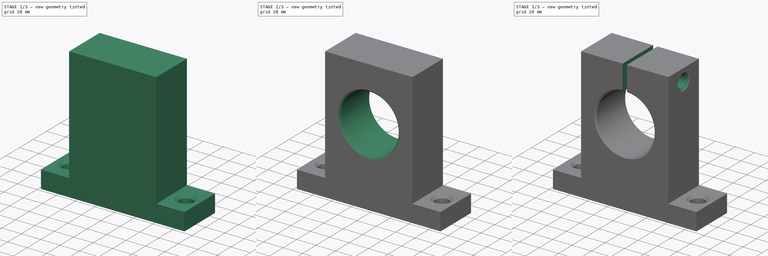
[diagram: build sequence overview — one tinted view per stage of 3, left to right]
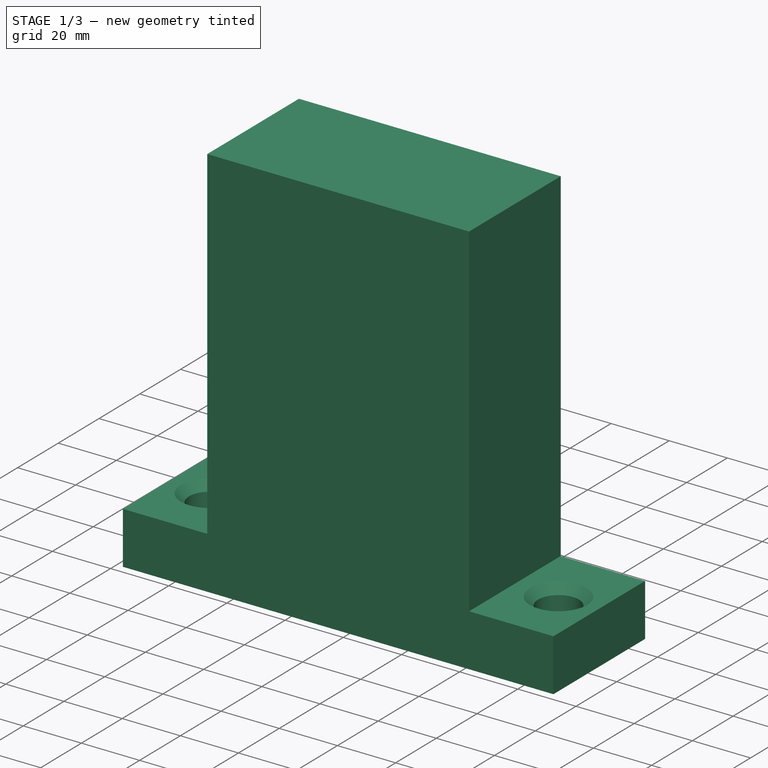
[diagram: stage 1 of 3 — iso view after this stage's code; geometry added in this stage tinted green]
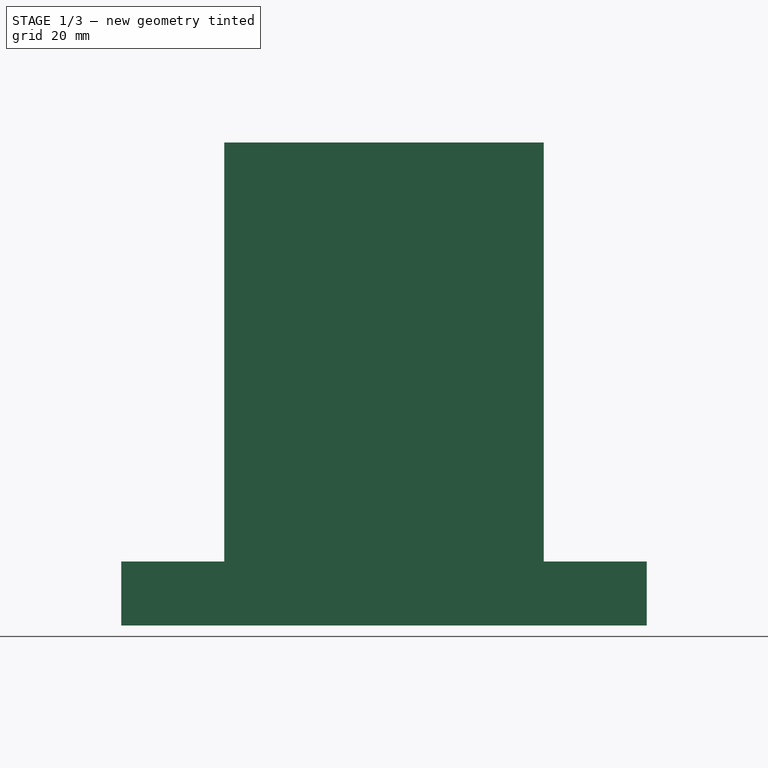
[diagram: stage 1 of 3 — front view after this stage's code; geometry added in this stage tinted green]
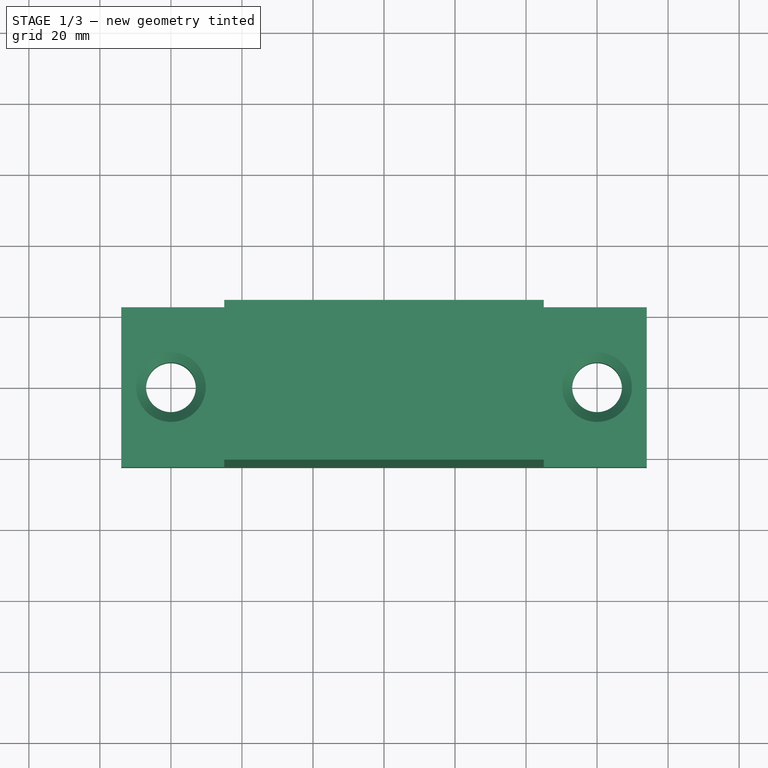
[diagram: stage 1 of 3 — top view after this stage's code; geometry added in this stage tinted green]
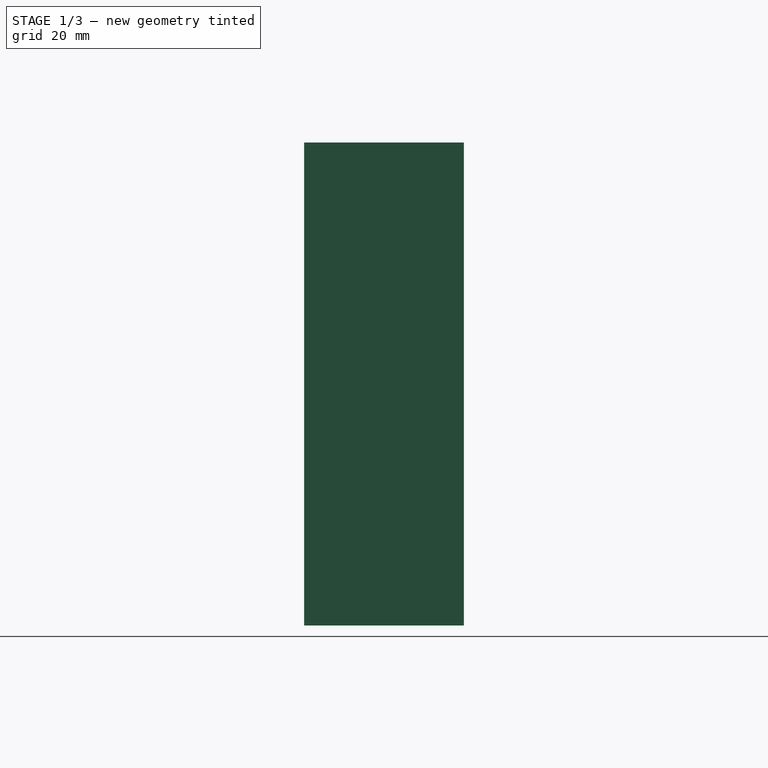
[diagram: stage 1 of 3 — right view after this stage's code; geometry added in this stage tinted green]
FCSTD DOCUMENT  (FreeCAD 0.21R30492 (Git))
Label: SKXX
License: All rights reserved
LicenseURL: http://en.wikipedia.org/wiki/All_rights_reserved
objects: Sketcher::SketchObject×5, PartDesign::Pocket×4, PartDesign::Chamfer×3, Spreadsheet::Sheet×1, PartDesign::Pad×1, PartDesign::Body×1, App::Part×1
note: 22 computed .brp shape members not serialized (recipe doc carries the construction recipe); baked Part::Feature solids carry a one-line shape summary decoded from their .brp

FEATURE [Spreadsheet::Sheet] Spreadsheet
  cells = C1=Main dimensions; A2=Model; B2=Shaft diameter; C2=h; D2=E; E2=W; F2=L; G2=F; H2=G; I2=P; J2=B; K2=S; M2=Clamping blot; O2=Mounting bolt; P2=Weight [kg]; A3==hiddenref(Part.Configuration.String); B3(D_dim)==.B15; C3(h_dim)==.C15; D3(E_dim)==.D15; E3(W_dim)==.E15; F3(L_dim)==.F15; G3(F_dim)==.G15; H3(G_dim)==.H15; I3(P_dim)==.I15; J3(B_dim)==.J15; K3(S_dim)==.K15; L3(clamp_bolt)==.L15; M3==.M15; N3==.N15; O3==.O15; P3==.P15; A4=SK08; B4=8; C4=20; D4=21; E4=42; F4=14; G4=32.8; H4=3; I4=18; J4=32; K4=5.5; L4=4; M4=M4; N4=5; O4=M5; P4=0.024; A5=SK10; B5=10; C5=20; D5=21; E5=42; F5=14; G5=32.8; H5=6; I5=18; J5=32; K5=5.5; L5=4; M5=M4; N5=5; O5=M5; P5=0.024; A6=SK12; B6=12; C6=23; D6=21; E6=42; F6=14; G6=37.5; H6=6; I6=20; J6=32; K6=5.5; L6=4; M6=M4; N6=5; O6=M5; P6=0.03; A7=SK13; B7=13; C7=23; D7=21; E7=42; F7=14; G7=37.5; H7=6; I7=20; J7=32; K7=5.5; L7=4; M7=M4; N7=5; O7=M5; P7=0.03; A8=SK16; B8=16; C8=27; D8=24; E8=48; F8=16; G8=44; H8=8; I8=25; J8=38; K8=5.5; L8=5; M8=M5; N8=6; O8=M6; P8=0.04; A9=SK20; B9=20; C9=31; D9=30; E9=60; F9=20; G9=51; H9=10; I9=30; J9=45; K9=6.6; L9=6; M9=M6; N9=6; O9=M6; P9=0.07000000000000001; A10=SK25; B10=25; C10=35; D10=35; E10=70; F10=24; G10=60; H10=12; I10=38; J10=56; K10=6.6; L10=6; M10=M6; N10=8; O10=M8; P10=0.13; A11=SK30; B11=30; C11=42; D11=42; E11=84; F11=28; G11=70; H11=12; I11=44; J11=64; K11=9; L11=8; M11=M8; N11=10; O11=M10; P11=0.18; A12=SK35; B12=35; C12=50; D12=49; E12=98; F12=32; G12=82; H12=15; I12=50; J12=74; K12=11; L12=8; M12=M8; N12=10; O12=M10; P12=0.27; A13=SK40; B13=40; C13=60; D13=57; E13=114; F13=36; G13=96; H13=15; I13=60; J13=90; K13=11; L13=10; M13=M10; N13=10; O13=M10; P13=0.42; A14=SK50; B14=50; C14=70; D14=63; E14=126; F14=40; G14=120; H14=18; I14=74; +23 more cells
  expr: .cells.Bind.B3.P3 = tuple(.cells; <<B>> + str(hiddenref(Part.Configuration) + 4); <<P>> + str(hiddenref(Part.Configuration) + 4))
FEATURE [Sketcher::SketchObject] Sketch
  FullyConstrained = true
  MapMode = 5
  Placement = pos=(0,0,0) rot=(1,0,0;1.5708rad)
  Support = -> [XZ_Plane001]
  expr: Constraints[20] = <<Spreadsheet>>.W_dim
  expr: Constraints[21] = <<Spreadsheet>>.G_dim
  expr: Constraints[22] = <<Spreadsheet>>.F_dim
  expr: Constraints[23] = <<Spreadsheet>>.P_dim
  sketch-geometry (9):
    g0: LineSegment StartX=-74 StartY=0 StartZ=0 EndX=74 EndY=0 EndZ=0
    g1: LineSegment StartX=74 StartY=0 StartZ=0 EndX=74 EndY=18 EndZ=0
    g2: LineSegment StartX=74 StartY=18 StartZ=0 EndX=45 EndY=18 EndZ=0
    g3: LineSegment StartX=45 StartY=18 StartZ=0 EndX=45 EndY=136 EndZ=0
    g4: LineSegment StartX=45 StartY=136 StartZ=0 EndX=-45 EndY=136 EndZ=0
    g5: LineSegment StartX=-45 StartY=136 StartZ=0 EndX=-45 EndY=18 EndZ=0
    g6: LineSegment StartX=-45 StartY=18 StartZ=0 EndX=-74 EndY=18 EndZ=0
    g7: LineSegment StartX=-74 StartY=18 StartZ=0 EndX=-74 EndY=0 EndZ=0
    g8: GeomPoint X=0 Y=136 Z=0
  constraints (24):
    c: PointOnObject(g0,g-1)
    c: Coincident(g0,g1)
    c: Vertical(g1)
    c: Coincident(g1,g2)
    c: Horizontal(g2)
    c: Coincident(g2,g3)
    c: Vertical(g3)
    c: Coincident(g3,g4)
    c: Horizontal(g4)
    c: Coincident(g4,g5)
    c: Vertical(g5)
    c: Coincident(g5,g6)
    c: Horizontal(g6)
    c: Coincident(g6,g7)
    c: Coincident(g7,g0)
    c: Vertical(g7)
    c: Equal(g1,g7)
    c: PointOnObject(g8,g-2)
    c: Symmetric(g3,g4,g8)
    c: Symmetric(g0,g0,g-1)
    c: DistanceX(g0,g0) = 148
    c: DistanceY(g1,g1) = 18
    c: DistanceY(g3) = 136
    c: DistanceX(g4,g4) = 90
FEATURE [PartDesign::Pad] Pad
  Direction = (0,-1,-2e-16)
  Length = 45
  Length2 = 10
  Midplane = true
  Placement = pos=(0,0,0) rot=(1,0,0;1.5708rad)
  Profile = -> Sketch
  ReferenceAxis = -> Sketch [N_Axis]
  Type = 0
  expr: Length = <<Spreadsheet>>.L_dim
FEATURE [Sketcher::SketchObject] Sketch001
  FullyConstrained = true
  MapMode = 5
  Placement = pos=(0,-4e-15,18) rot=(0,0,1;3.14159rad)
  Support = -> [Pad]
  expr: Constraints[2] = <<Spreadsheet>>.S_dim
  expr: Constraints[4] = <<Spreadsheet>>.B_dim
  sketch-geometry (2):
    g0: Circle CenterX=-60 CenterY=0 CenterZ=0 NormalX=0 NormalY=0 NormalZ=1 AngleXU=0 Radius=7
    g1: Circle CenterX=60 CenterY=0 CenterZ=0 NormalX=0 NormalY=0 NormalZ=1 AngleXU=0 Radius=7
  constraints (5):
    c: PointOnObject(g0,g-1)
    c: Equal(g0,g1)
    c: Diameter(g0) = 14
    c: Symmetric(g0,g1,g-1)
    c: DistanceX(g0,g1) = 120
FEATURE [PartDesign::Pocket] Pocket
  BaseFeature = -> Pad
  Direction = (0,2e-16,-1)
  Length = 5
  Length2 = 5
  Placement = pos=(0,0,0) rot=(1,0,0;1.5708rad)
  Profile = -> Sketch001
  ReferenceAxis = -> Sketch001 [N_Axis]
  Type = 2
FEATURE [PartDesign::Chamfer] Chamfer
  Angle = 45
  Base = -> Pocket [Edge23,Edge25]
  BaseFeature = -> Pocket
  ChamferType = 0
  FlipDirection = false
  Placement = pos=(0,0,0) rot=(1,0,0;1.5708rad)
  Size = 2.8
  Size2 = 1
  SupportTransform = false
  UseAllEdges = false
  expr: Size = 0.2 * <<Spreadsheet>>.S_dim
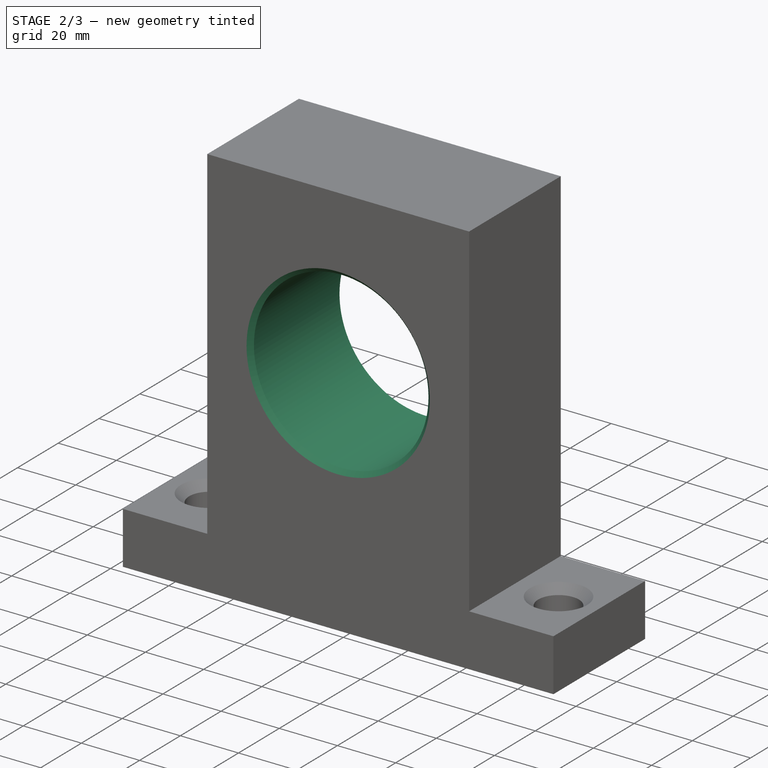
[diagram: stage 2 of 3 — iso view after this stage's code; geometry added in this stage tinted green]
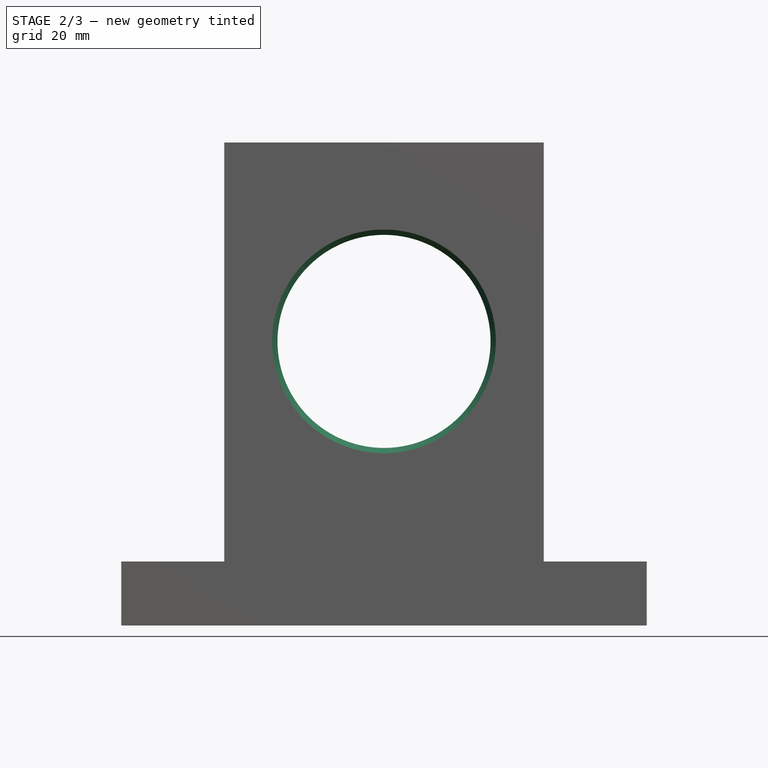
[diagram: stage 2 of 3 — front view after this stage's code; geometry added in this stage tinted green]
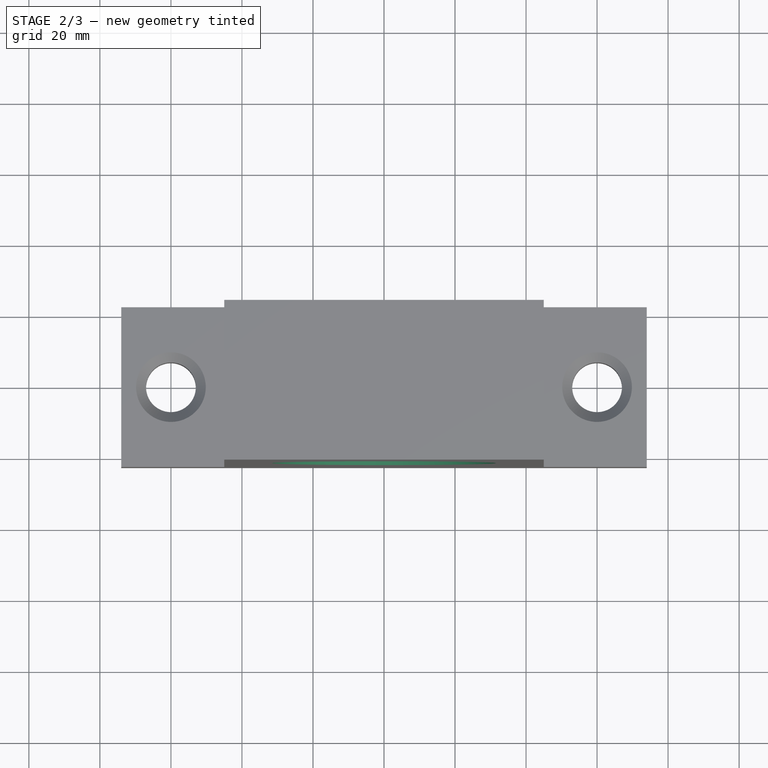
[diagram: stage 2 of 3 — top view after this stage's code; geometry added in this stage tinted green]
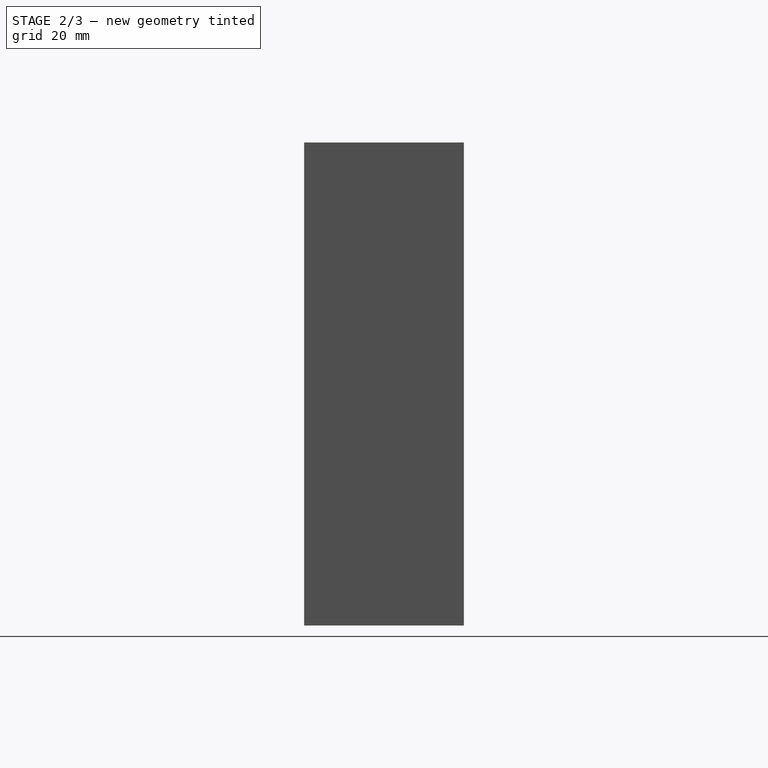
[diagram: stage 2 of 3 — right view after this stage's code; geometry added in this stage tinted green]
FEATURE [Sketcher::SketchObject] Sketch002
  FullyConstrained = true
  MapMode = 5
  Placement = pos=(0,-22.5,-5e-15) rot=(1,0,0;1.5708rad)
  Support = -> [Chamfer]
  expr: Constraints[1] = <<Spreadsheet>>.D_dim
  expr: Constraints[2] = <<Spreadsheet>>.h_dim
  sketch-geometry (1):
    g0: Circle CenterX=0 CenterY=80 CenterZ=0 NormalX=0 NormalY=0 NormalZ=1 AngleXU=0 Radius=30
  constraints (3):
    c: PointOnObject(g0,g-2)
    c: Diameter(g0) = 60
    c: DistanceY(g0) = 80
FEATURE [PartDesign::Pocket] Pocket001
  BaseFeature = -> Chamfer
  Direction = (0,1,2e-16)
  Length = 5
  Length2 = 5
  Placement = pos=(0,0,0) rot=(1,0,0;1.5708rad)
  Profile = -> Sketch002
  ReferenceAxis = -> Sketch002 [N_Axis]
  Type = 2
FEATURE [PartDesign::Chamfer] Chamfer001
  Angle = 45
  Base = -> Pocket001 [Edge22,Edge28]
  BaseFeature = -> Pocket001
  ChamferType = 0
  FlipDirection = false
  Placement = pos=(0,0,0) rot=(1,0,0;1.5708rad)
  Size = 1.5
  Size2 = 1
  SupportTransform = false
  UseAllEdges = false
  expr: Size = 0.025 * <<Spreadsheet>>.D_dim
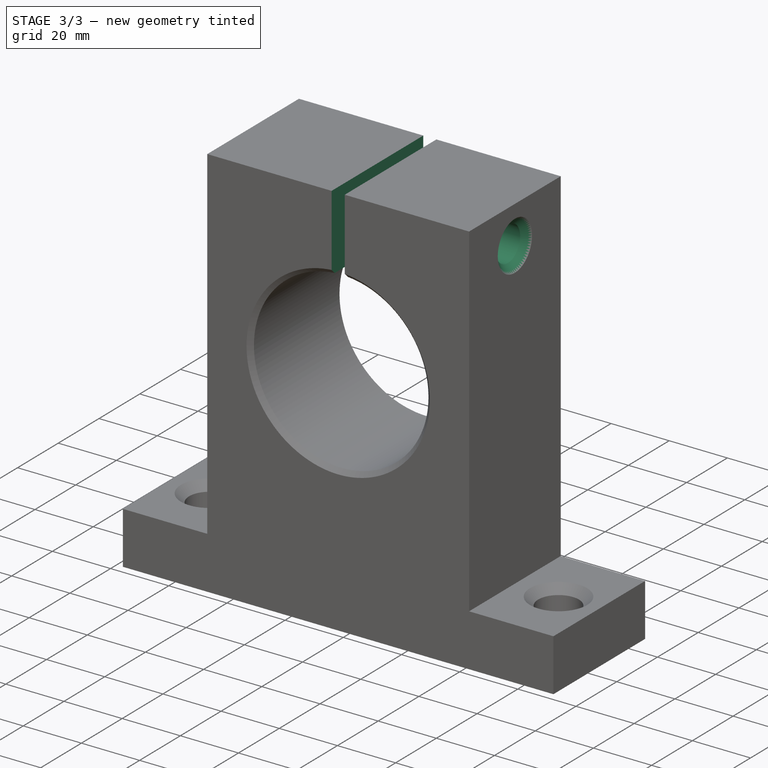
[diagram: stage 3 of 3 — iso view after this stage's code; geometry added in this stage tinted green]
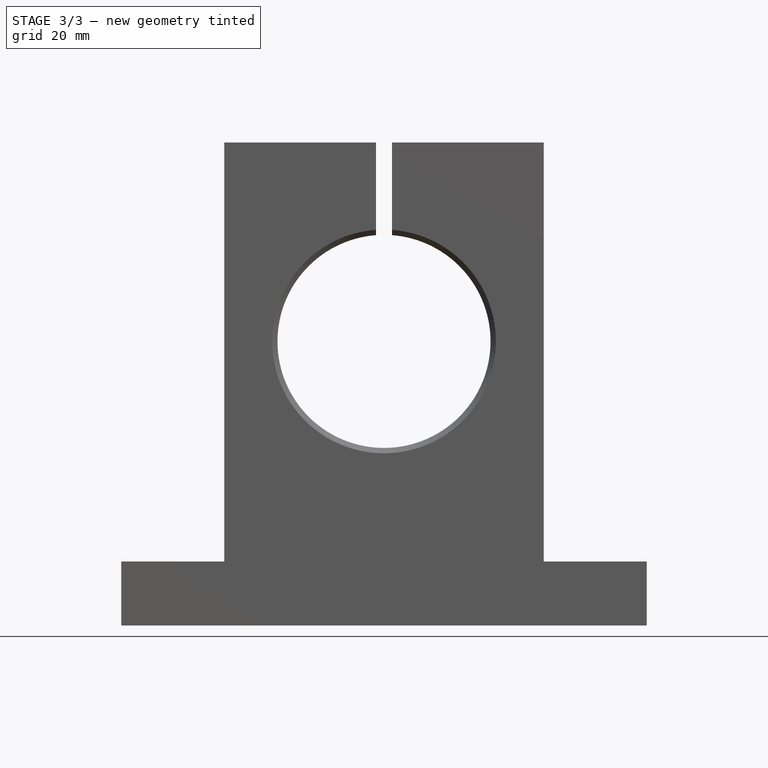
[diagram: stage 3 of 3 — front view after this stage's code; geometry added in this stage tinted green]
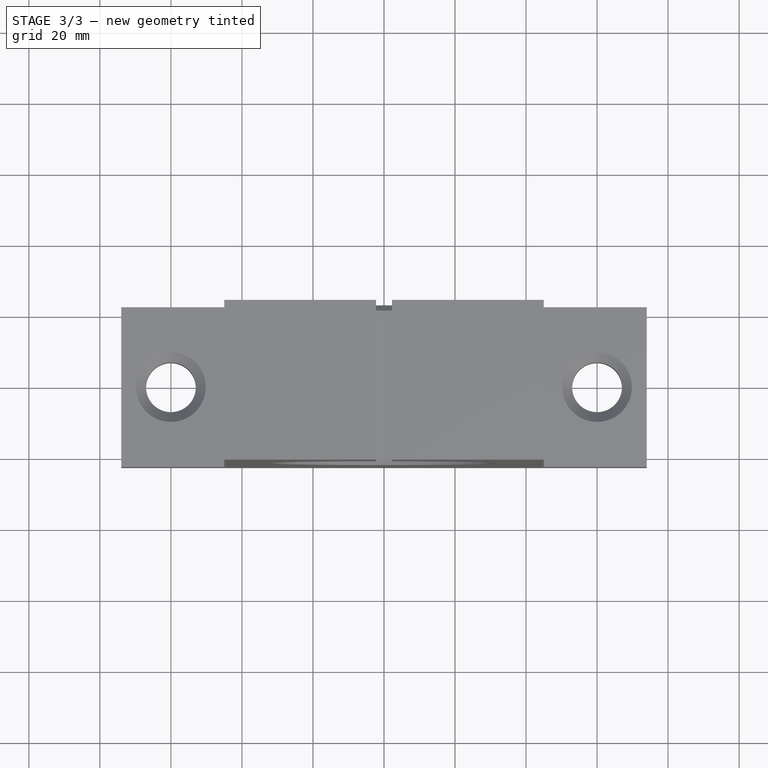
[diagram: stage 3 of 3 — top view after this stage's code; geometry added in this stage tinted green]
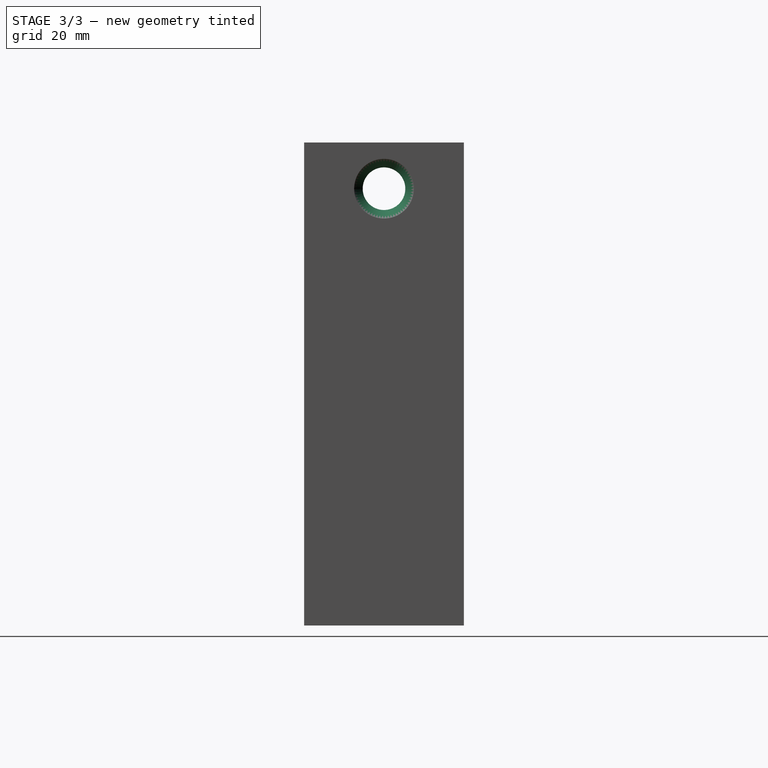
[diagram: stage 3 of 3 — right view after this stage's code; geometry added in this stage tinted green]
FEATURE [Sketcher::SketchObject] Sketch003
  FullyConstrained = true
  MapMode = 5
  Placement = pos=(45,0,0) rot=(0.707107,0,0.707107;3.14159rad)
  Support = -> [Chamfer001]
  expr: Constraints[1] = <<Spreadsheet>>.F_dim - (<<Spreadsheet>>.F_dim - <<Spreadsheet>>.h_dim - <<Spreadsheet>>.D_dim / 2) / 2
  expr: Constraints[2] = <<Spreadsheet>>.clamp_bolt
  sketch-geometry (1):
    g0: Circle CenterX=123 CenterY=0 CenterZ=0 NormalX=0 NormalY=0 NormalZ=1 AngleXU=0 Radius=6
  constraints (3):
    c: PointOnObject(g0,g-1)
    c: DistanceX(g0) = 123
    c: Diameter(g0) = 12
FEATURE [PartDesign::Pocket] Pocket002
  BaseFeature = -> Chamfer001
  Direction = (-1,0,2e-16)
  Length = 5
  Length2 = 5
  Placement = pos=(0,0,0) rot=(1,0,0;1.5708rad)
  Profile = -> Sketch003
  ReferenceAxis = -> Sketch003 [N_Axis]
  Type = 2
FEATURE [PartDesign::Chamfer] Chamfer002
  Angle = 45
  Base = -> Pocket002 [Edge29,Edge32]
  BaseFeature = -> Pocket002
  ChamferType = 0
  FlipDirection = false
  Placement = pos=(0,0,0) rot=(1,0,0;1.5708rad)
  Size = 2.4
  Size2 = 1
  SupportTransform = false
  UseAllEdges = false
  expr: Size = 0.2 * <<Spreadsheet>>.clamp_bolt
FEATURE [Sketcher::SketchObject] Sketch004
  ExternalGeometry = -> [Chamfer002]
  FullyConstrained = true
  MapMode = 5
  Placement = pos=(0,-3.02e-14,136) rot=(0,0,1;3.14159rad)
  Support = -> [Chamfer002]
  expr: Constraints[11] = 0.05 * <<Spreadsheet>>.P_dim
  sketch-geometry (5):
    g0: LineSegment StartX=-2.25 StartY=22.5 StartZ=0 EndX=-2.25 EndY=-22.5 EndZ=0
    g1: LineSegment StartX=-2.25 StartY=-22.5 StartZ=0 EndX=2.25 EndY=-22.5 EndZ=0
    g2: LineSegment StartX=2.25 StartY=-22.5 StartZ=0 EndX=2.25 EndY=22.5 EndZ=0
    g3: LineSegment StartX=2.25 StartY=22.5 StartZ=0 EndX=-2.25 EndY=22.5 EndZ=0
    g4: GeomPoint X=0 Y=0 Z=0
  constraints (12):
    c: Coincident(g0,g1)
    c: Coincident(g1,g2)
    c: Coincident(g2,g3)
    c: Coincident(g3,g0)
    c: Horizontal(g1)
    c: Horizontal(g3)
    c: Vertical(g0)
    c: Vertical(g2)
    c: Symmetric(g1,g0,g4)
    c: Coincident(g4,g-1)
    c: PointOnObject(g1,g-4)
    c: DistanceX(g3,g3) = 4.5
FEATURE [PartDesign::Pocket] Pocket003
  BaseFeature = -> Chamfer002
  Direction = (0,2e-16,-1)
  Length = 56
  Length2 = 5
  Placement = pos=(0,0,0) rot=(1,0,0;1.5708rad)
  Profile = -> Sketch004
  ReferenceAxis = -> Sketch004 [N_Axis]
  Type = 0
  expr: Length = <<Spreadsheet>>.F_dim - <<Spreadsheet>>.h_dim
FEATURE [PartDesign::Body] Body
  Group = -> [Sketch,Pad,Sketch001,Pocket,Chamfer,Sketch002,Pocket001,Chamfer001,Sketch003,Pocket002,Chamfer002,Sketch004,Pocket003]
  Origin = -> Origin001
  Tip = -> Pocket003
FEATURE [App::Part] Part  label="SKXX"
  Configuration = 11
  Group = -> [Spreadsheet,Body]
  Origin = -> Origin
  expr: .Configuration.Enum = Spreadsheet.cells[<<A4:|>>]
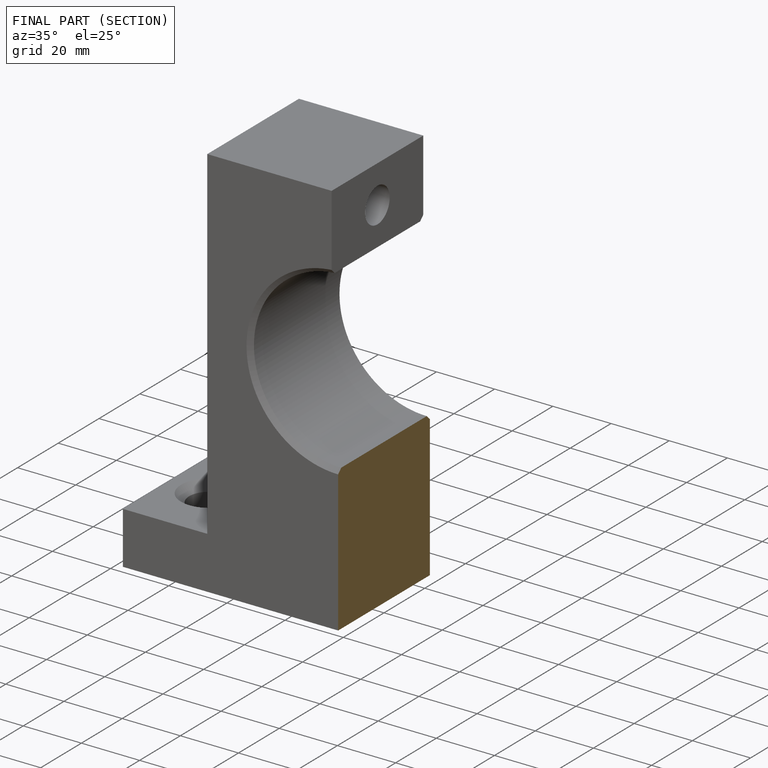
[diagram: finished part — half-section view (interior)]
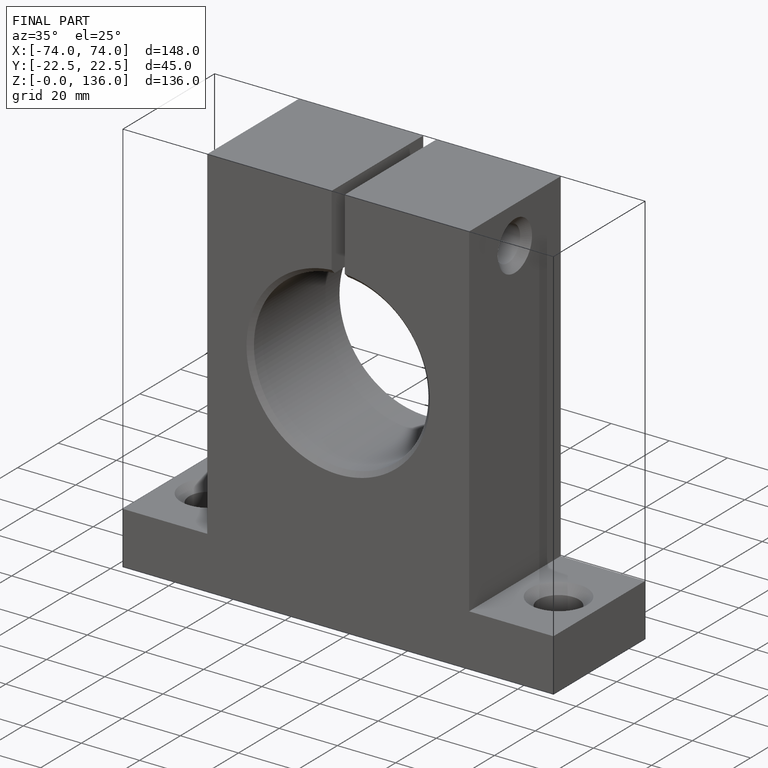
[diagram: finished part — iso view with bounding-box wireframe]
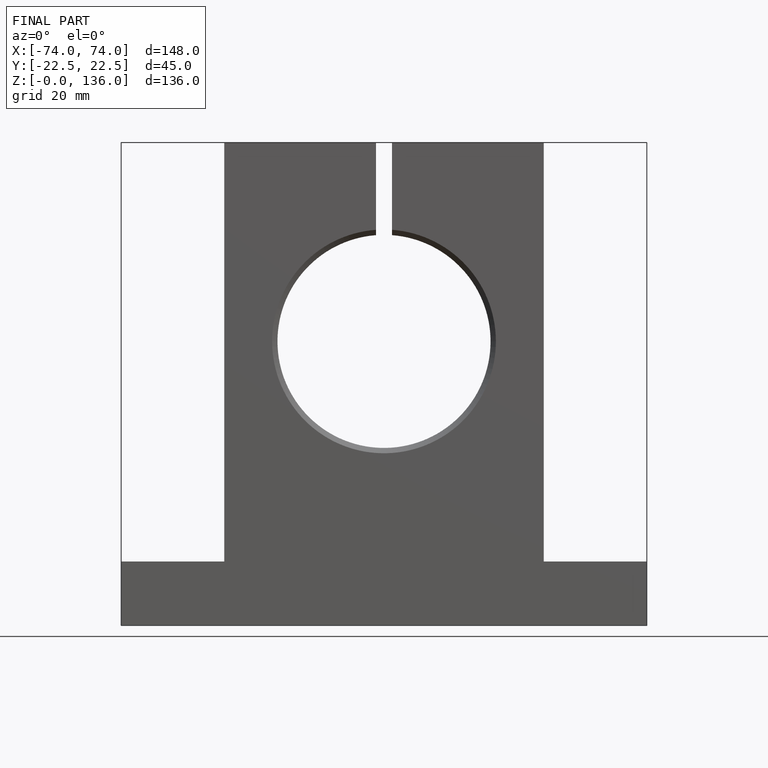
[diagram: finished part — front view with bounding-box wireframe]
